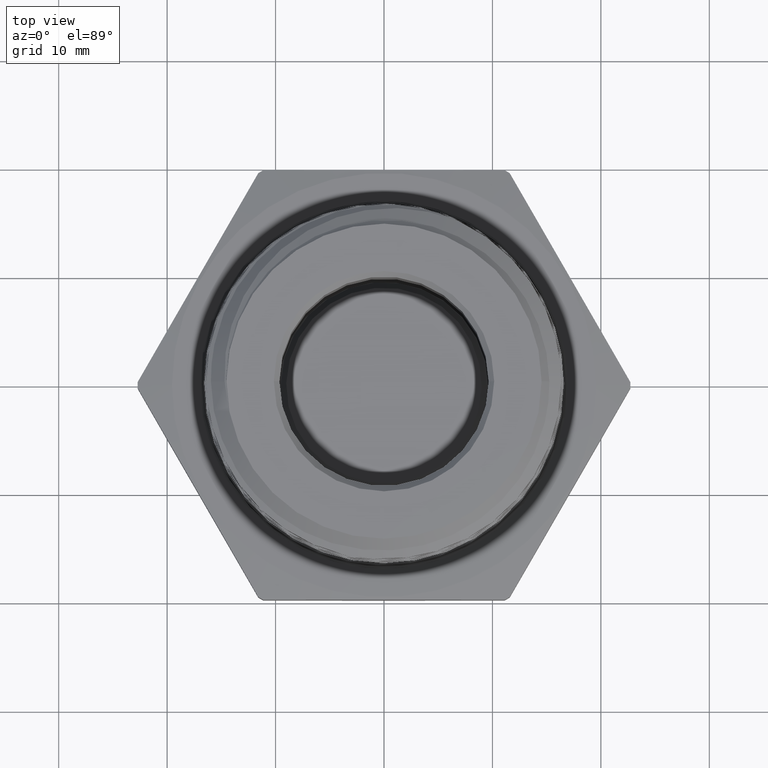
[diagram: clean part render]
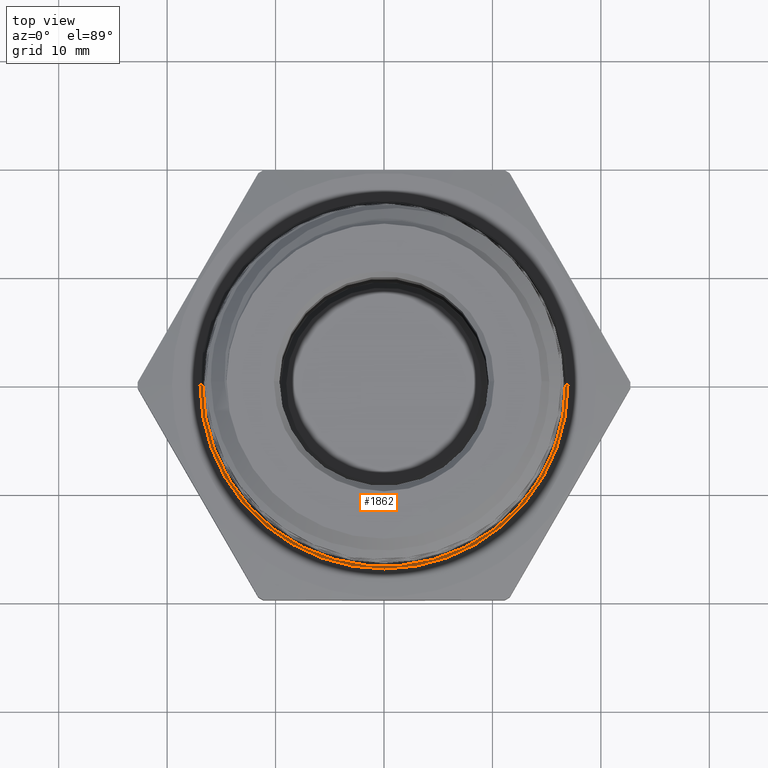
[diagram: same view with one face highlighted and labeled with its STEP entity id]
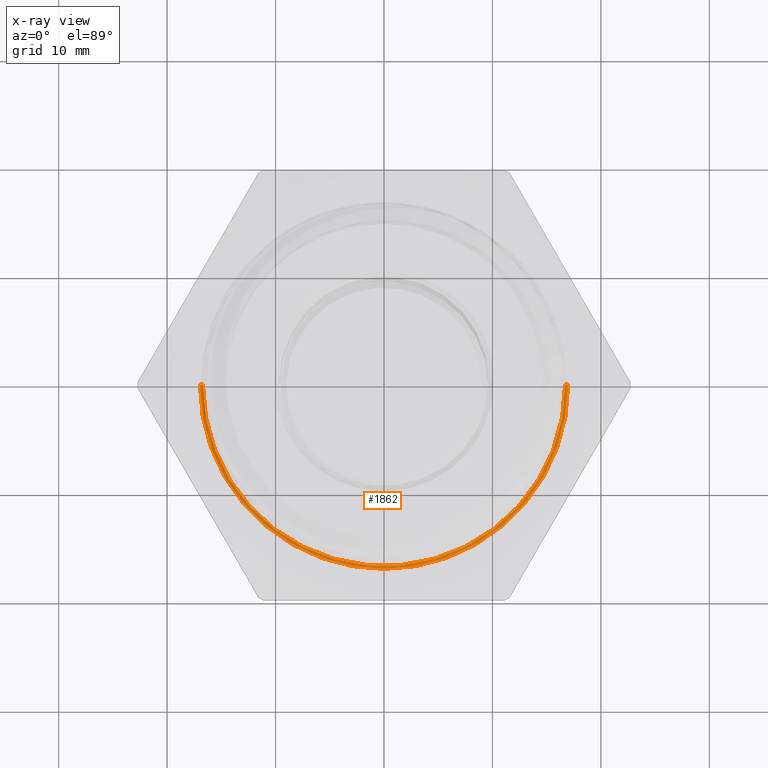
[diagram: x-ray of the same camera — body ghosted, the highlighted face saturated]
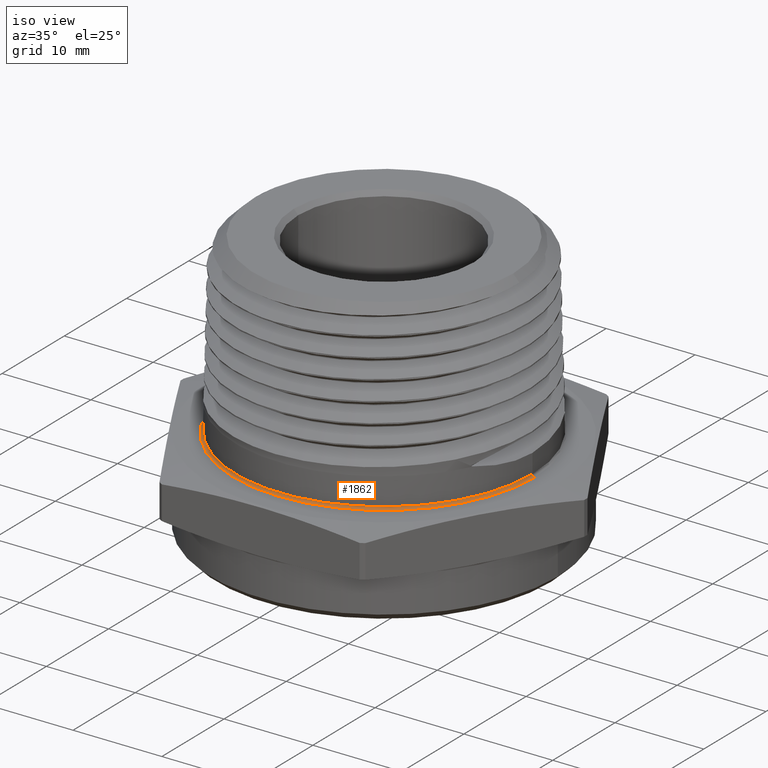
[diagram: same view with one face highlighted and labeled with its STEP entity id]
A machine part, top view. The second image highlights one B-rep face of the part: STEP entity #1862.
The next image is the same camera in x-ray: the body ghosted, the highlighted face saturated — about 0% of this face is hidden behind the body in this view.
A second angle (iso view) of the same face is appended — the face is thin or edge-on in the first view.
In plain terms, the highlighted toroidal blend (fillet) surface has major radius 16.9672 mm and minor (blend) radius 0.254 mm.
Its self-contained STEP definition (entity closure, byte-faithful):
#51 = AXIS2_PLACEMENT_3D ( 'NONE', #2552, #2553, #2554 ) ;
#52 = AXIS2_PLACEMENT_3D ( 'NONE', #2555, #2556, #2557 ) ;
#53 = AXIS2_PLACEMENT_3D ( 'NONE', #2558, #2559, #2560 ) ;
#54 = AXIS2_PLACEMENT_3D ( 'NONE', #2561, #2562, #2563 ) ;
#1862 = ADVANCED_FACE ( 'NONE', ( #5421 ), #5706, .F. ) ;
#2552 = CARTESIAN_POINT ( 'NONE',  ( 0.0000000000000000000, 0.0000000000000000000, 0.2099999999999999400 ) ) ;
#2553 = DIRECTION ( 'NONE',  ( -0.0000000000000000000, 0.0000000000000000000, 1.000000000000000000 ) ) ;
#2554 = DIRECTION ( 'NONE',  ( 1.000000000000000000, 0.0000000000000000000, 0.0000000000000000000 ) ) ;
#2555 = CARTESIAN_POINT ( 'NONE',  ( -0.6680000000000000400, 8.180640618304319800E-017, 0.2099999999999999400 ) ) ;
#2556 = DIRECTION ( 'NONE',  ( 1.224646799147353200E-016, 1.000000000000000000, 0.0000000000000000000 ) ) ;
#2557 = DIRECTION ( 'NONE',  ( -1.000000000000000000, 1.224646799147354400E-016, 0.0000000000000000000 ) ) ;
#2558 = CARTESIAN_POINT ( 'NONE',  ( 0.0000000000000000000, 0.0000000000000000000, 0.2000000000000000100 ) ) ;
#2559 = DIRECTION ( 'NONE',  ( 0.0000000000000000000, -0.0000000000000000000, -1.000000000000000000 ) ) ;
#2560 = DIRECTION ( 'NONE',  ( 1.000000000000000000, 0.0000000000000000000, 0.0000000000000000000 ) ) ;
#2561 = CARTESIAN_POINT ( 'NONE',  ( 0.6680000000000000400, 0.0000000000000000000, 0.2099999999999999400 ) ) ;
#2562 = DIRECTION ( 'NONE',  ( 0.0000000000000000000, -1.000000000000000000, 0.0000000000000000000 ) ) ;
#2563 = DIRECTION ( 'NONE',  ( 0.0000000000000000000, 0.0000000000000000000, -1.000000000000000000 ) ) ;
#2630 = CARTESIAN_POINT ( 'NONE',  ( -0.6580000000000000300, 0.0000000000000000000, 0.2099999999999999400 ) ) ;
#2633 = CARTESIAN_POINT ( 'NONE',  ( 0.6580000000000000300, 8.058175938389584700E-017, 0.2099999999999999400 ) ) ;
#2635 = CARTESIAN_POINT ( 'NONE',  ( 0.6680000000000000400, 0.0000000000000000000, 0.1999999999999999800 ) ) ;
#2636 = CARTESIAN_POINT ( 'NONE',  ( -0.6680000000000000400, 8.180640618304318600E-017, 0.1999999999999999800 ) ) ;
#3440 = DIRECTION ( 'NONE',  ( -0.0000000000000000000, 0.0000000000000000000, 1.000000000000000000 ) ) ;
#3444 = CARTESIAN_POINT ( 'NONE',  ( 0.0000000000000000000, 0.0000000000000000000, 0.2099999999999999400 ) ) ;
#3446 = DIRECTION ( 'NONE',  ( 1.000000000000000000, 0.0000000000000000000, 0.0000000000000000000 ) ) ;
#5282 = ORIENTED_EDGE ( 'NONE', *, *, #5387, .F. ) ;
#5283 = ORIENTED_EDGE ( 'NONE', *, *, #5388, .T. ) ;
#5284 = ORIENTED_EDGE ( 'NONE', *, *, #5389, .F. ) ;
#5285 = ORIENTED_EDGE ( 'NONE', *, *, #5390, .F. ) ;
#5387 = EDGE_CURVE ( 'NONE', #5614, #5617, #5542, .T. ) ;
#5388 = EDGE_CURVE ( 'NONE', #5614, #5620, #5546, .T. ) ;
#5389 = EDGE_CURVE ( 'NONE', #5619, #5620, #5544, .T. ) ;
#5390 = EDGE_CURVE ( 'NONE', #5617, #5619, #5548, .T. ) ;
#5421 = FACE_OUTER_BOUND ( 'NONE', #6086, .T. ) ;
#5542 = CIRCLE ( 'NONE', #51, 0.6580000000000000300 ) ;
#5544 = CIRCLE ( 'NONE', #53, 0.6680000000000000400 ) ;
#5546 = CIRCLE ( 'NONE', #52, 0.01000000000000003000 ) ;
#5548 = CIRCLE ( 'NONE', #54, 0.009999999999999995000 ) ;
#5614 = VERTEX_POINT ( 'NONE', #2630 ) ;
#5617 = VERTEX_POINT ( 'NONE', #2633 ) ;
#5619 = VERTEX_POINT ( 'NONE', #2635 ) ;
#5620 = VERTEX_POINT ( 'NONE', #2636 ) ;
#5706 = TOROIDAL_SURFACE ( 'NONE', #6540, 0.6680000000000000400, 0.01000000000000000000 ) ;
#6086 = EDGE_LOOP ( 'NONE', ( #5282, #5283, #5284, #5285 ) ) ;
#6540 = AXIS2_PLACEMENT_3D ( 'NONE', #3444, #3440, #3446 ) ;